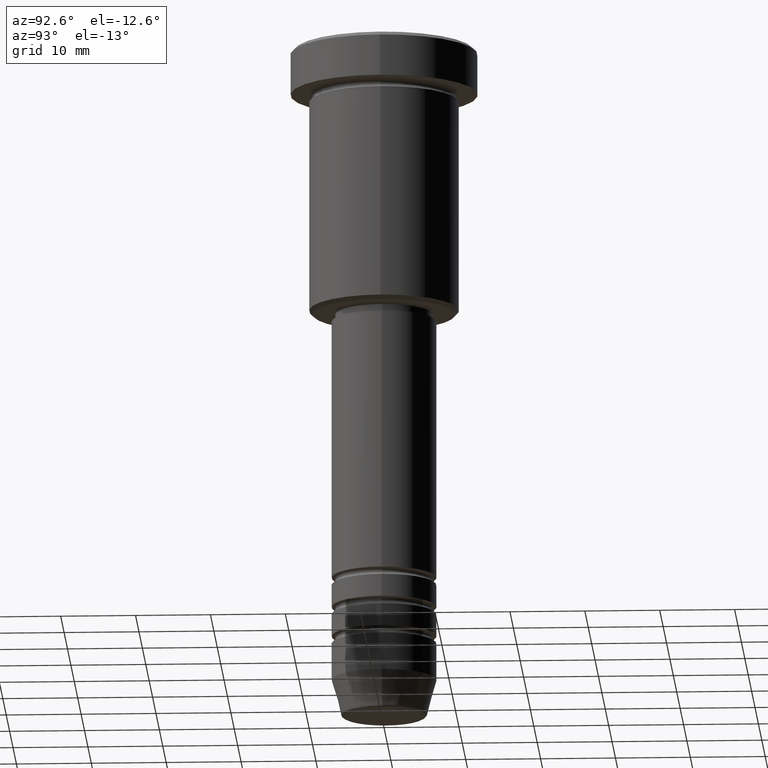
[diagram: clean part render]
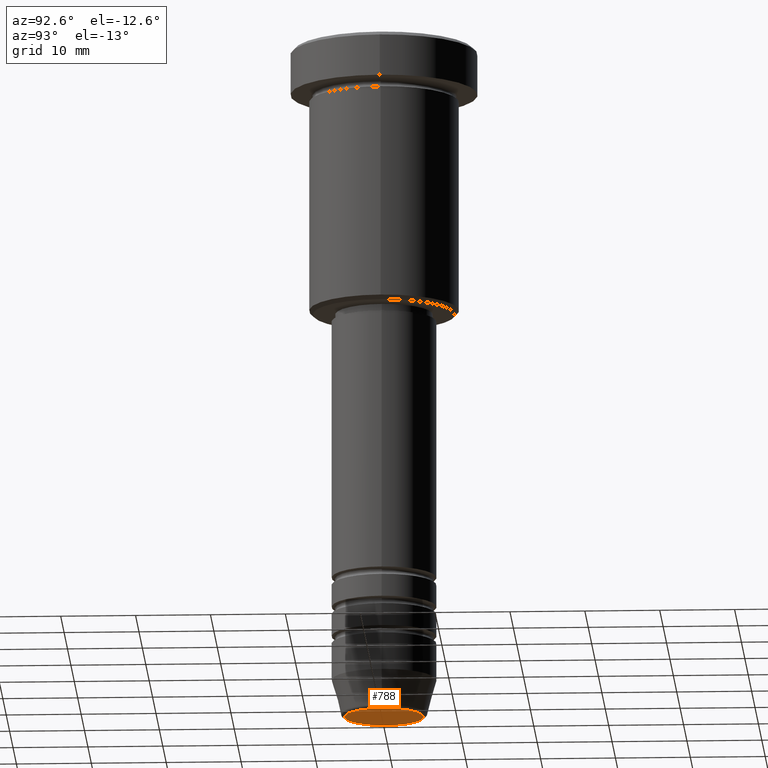
[diagram: same view with one face highlighted and labeled with its STEP entity id]
A machine part, auxiliary view. The second image highlights one B-rep face of the part: STEP entity #788.
In plain terms, the highlighted planar face has unit normal (0, -0, 1).
Its self-contained STEP definition (entity closure, byte-faithful):
#8 = EDGE_CURVE ( 'NONE', #117, #118, #833, .T. ) ;
#14 = ORIENTED_EDGE ( 'NONE', *, *, #8, .T. ) ;
#56 = CARTESIAN_POINT ( 'NONE',  ( 0.000000000000000000, 0.000000000000000000, -91.00000000000000000 ) ) ;
#75 = DIRECTION ( 'NONE',  ( 0.000000000000000000, 0.000000000000000000, -1.000000000000000000 ) ) ;
#117 = VERTEX_POINT ( 'NONE', #135 ) ;
#118 = VERTEX_POINT ( 'NONE', #1052 ) ;
#135 = CARTESIAN_POINT ( 'NONE',  ( 5.276590543854901227, 0.000000000000000000, -91.00000000000000000 ) ) ;
#190 = CARTESIAN_POINT ( 'NONE',  ( 0.000000000000000000, 0.000000000000000000, -91.00000000000000000 ) ) ;
#250 = EDGE_CURVE ( 'NONE', #118, #117, #593, .T. ) ;
#365 = AXIS2_PLACEMENT_3D ( 'NONE', #56, #1152, #699 ) ;
#415 = CARTESIAN_POINT ( 'NONE',  ( 0.000000000000000000, 0.000000000000000000, -91.00000000000000000 ) ) ;
#512 = PLANE ( 'NONE',  #365 ) ;
#526 = FACE_OUTER_BOUND ( 'NONE', #1002, .T. ) ;
#593 = CIRCLE ( 'NONE', #1063, 5.276590543854901227 ) ;
#659 = ORIENTED_EDGE ( 'NONE', *, *, #250, .T. ) ;
#675 = DIRECTION ( 'NONE',  ( 1.000000000000000000, 0.000000000000000000, 0.000000000000000000 ) ) ;
#699 = DIRECTION ( 'NONE',  ( 1.000000000000000000, 0.000000000000000000, 0.000000000000000000 ) ) ;
#724 = DIRECTION ( 'NONE',  ( 1.000000000000000000, 0.000000000000000000, 0.000000000000000000 ) ) ;
#788 = ADVANCED_FACE ( 'NONE', ( #526 ), #512, .F. ) ;
#833 = CIRCLE ( 'NONE', #1085, 5.276590543854901227 ) ;
#944 = DIRECTION ( 'NONE',  ( 0.000000000000000000, 0.000000000000000000, -1.000000000000000000 ) ) ;
#1002 = EDGE_LOOP ( 'NONE', ( #14, #659 ) ) ;
#1052 = CARTESIAN_POINT ( 'NONE',  ( -5.276590543854901227, 6.757689212787763943E-16, -91.00000000000000000 ) ) ;
#1063 = AXIS2_PLACEMENT_3D ( 'NONE', #190, #75, #724 ) ;
#1085 = AXIS2_PLACEMENT_3D ( 'NONE', #415, #944, #675 ) ;
#1152 = DIRECTION ( 'NONE',  ( 0.000000000000000000, -0.000000000000000000, 1.000000000000000000 ) ) ;